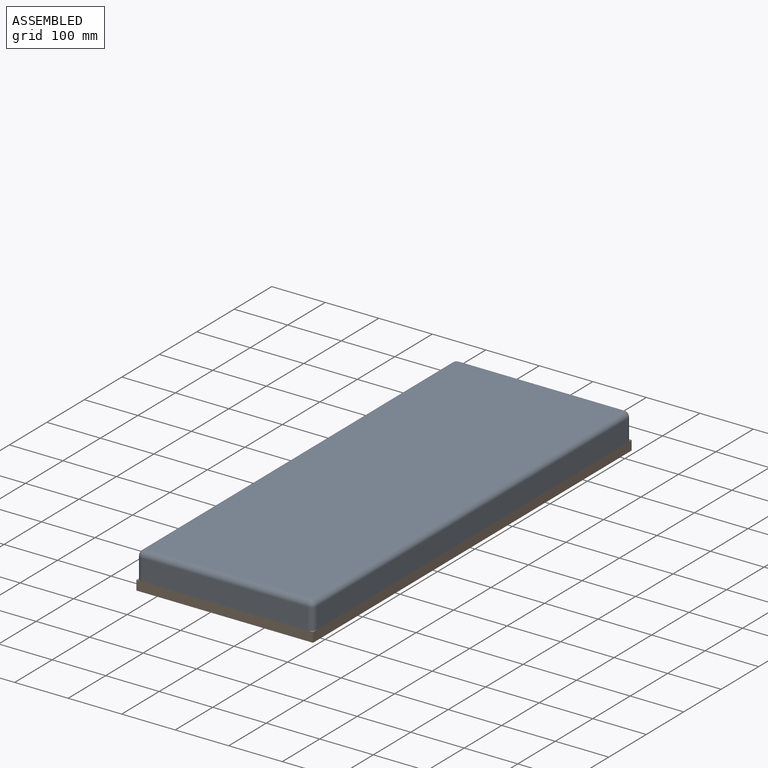
[diagram: assembled view]
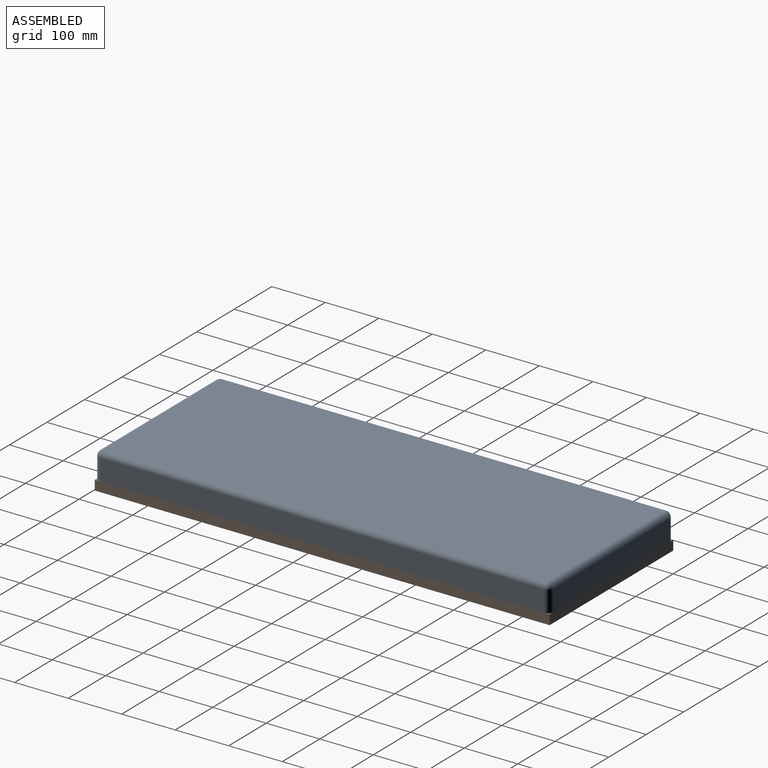
[diagram: assembled view, second angle]
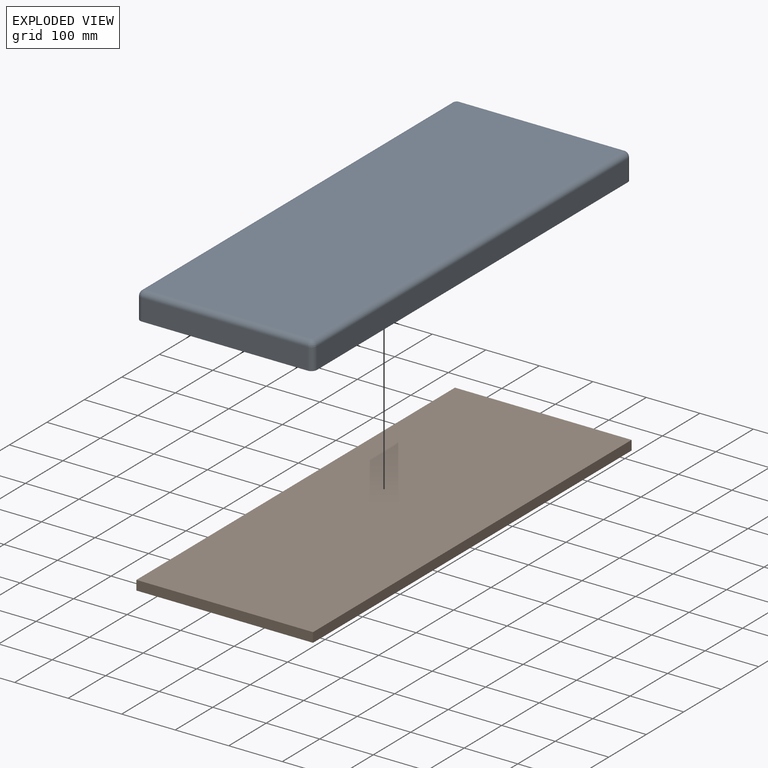
[diagram: exploded view]
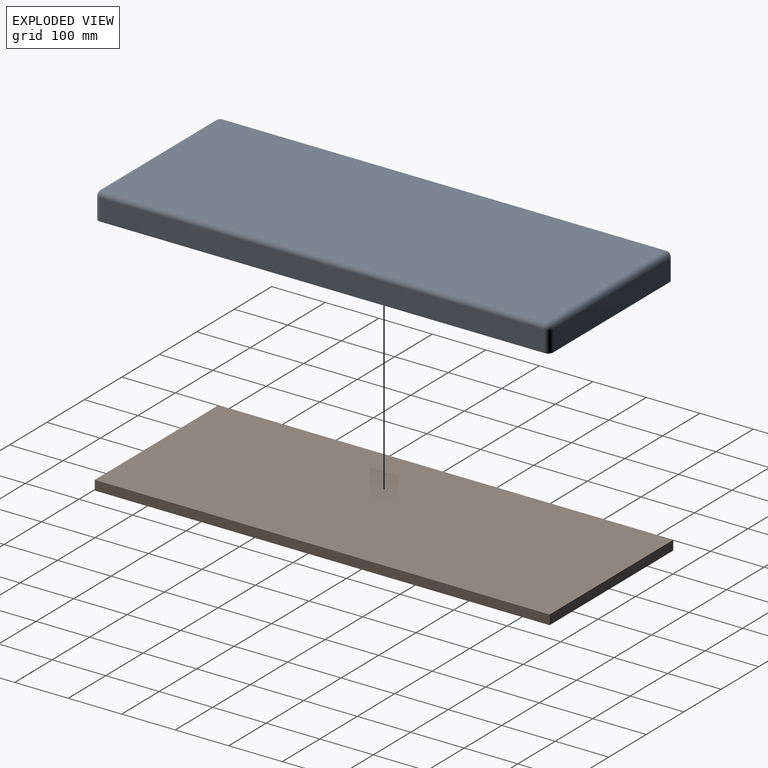
[diagram: exploded view, second angle]
ASSEMBLY  parts=2 mates=3
PART A: 18 faces, bbox 330x850x50 mm
  f0: plane 310x40mm, normal (0,-1,0), area 12400mm2, adj f5,f8,f14,f17
  f1: plane 830x40mm, normal (1,0,0), area 33200mm2, adj f5,f11,f15,f17
  f2: plane 310x40mm, normal (0,1,0), area 12400mm2, adj f5,f6,f10,f11
  f3: plane 830x40mm, normal (-1,0,0), area 33200mm2, adj f5,f6,f8,f9
  f4: plane 830x310mm, normal (0,0,1), area 257300mm2, adj f9,f10,f14,f15
  f5: plane 850x330mm, normal (0,0,-1), area 280414.2mm2, adj f0,f1,f2,f3,f6,f8,f11,f17
  f6: cylinder r=10mm len=40mm, axis (0,0,1), area 628.3mm2, adj f2,f3,f5,f7
  f7: sphere r=10mm, area 157.1mm2, adj f6,f9,f10
  f8: cylinder r=10mm len=40mm, axis (0,0,-1), area 628.3mm2, adj f0,f3,f5,f12
  f9: cylinder r=10mm len=830mm, axis (0,1,0), area 13037.6mm2, adj f3,f4,f7,f12
  f10: cylinder r=10mm len=310mm, axis (1,0,0), area 4869.5mm2, adj f2,f4,f7,f13
  f11: cylinder r=10mm len=40mm, axis (0,0,-1), area 628.3mm2, adj f1,f2,f5,f13
  f12: sphere r=10mm, area 157.1mm2, adj f8,f9,f14
  f13: sphere r=10mm, area 157.1mm2, adj f10,f11,f15
  f14: cylinder r=10mm len=310mm, axis (-1,0,0), area 4869.5mm2, adj f0,f4,f12,f16
  f15: cylinder r=10mm len=830mm, axis (0,-1,0), area 13037.6mm2, adj f1,f4,f13,f16
  f16: sphere r=10mm, area 157.1mm2, adj f14,f15,f17
  f17: cylinder r=10mm len=40mm, axis (0,0,1), area 628.3mm2, adj f0,f1,f5,f16
PART B: 6 faces, bbox 330x850x18 mm
  f0: plane 330x18mm, normal (0,-1,0), area 5940mm2, adj f1,f3,f4,f5
  f1: plane 850x18mm, normal (1,0,0), area 15300mm2, adj f0,f2,f4,f5
  f2: plane 330x18mm, normal (0,1,0), area 5940mm2, adj f1,f3,f4,f5
  f3: plane 850x18mm, normal (-1,0,0), area 15300mm2, adj f0,f2,f4,f5
  f4: plane 850x330mm, normal (0,0,1), area 280500mm2, adj f0,f1,f2,f3
  f5: plane 850x330mm, normal (0,0,-1), area 280500mm2, adj f0,f1,f2,f3
PLACE A at identity
PLACE B at identity fixed
MATE planar B.f4 <-> A.f5  axis (0,0,1) through (0,0,18)mm
MATE planar A.f1 <-> B.f1  axis (1,0,0) through (165,0,38)mm
MATE planar A.f0 <-> B.f0  axis (0,-1,0) through (0,-425,38)mm
